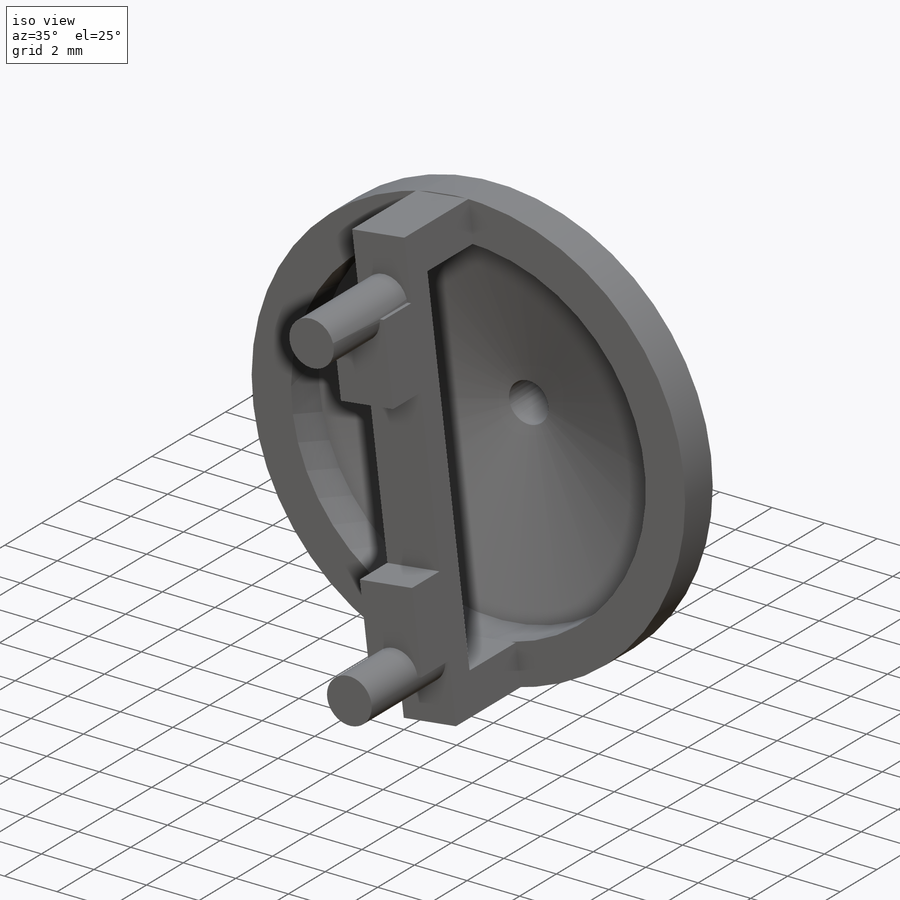
[diagram: iso view]
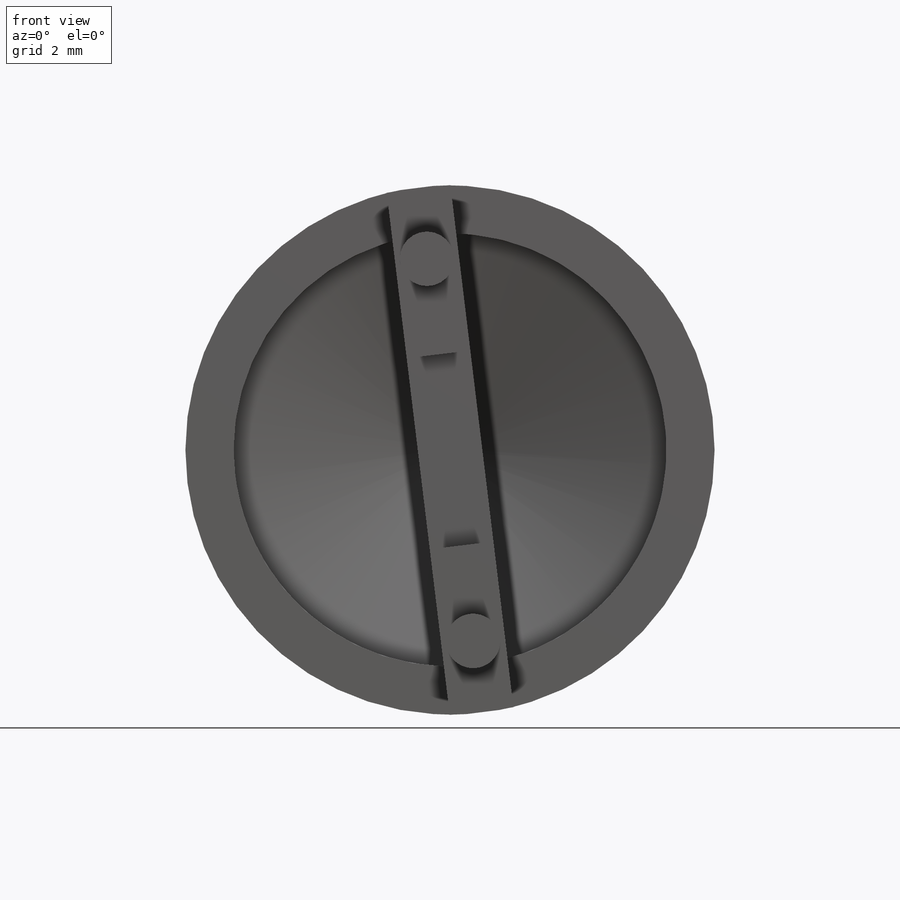
[diagram: front view]
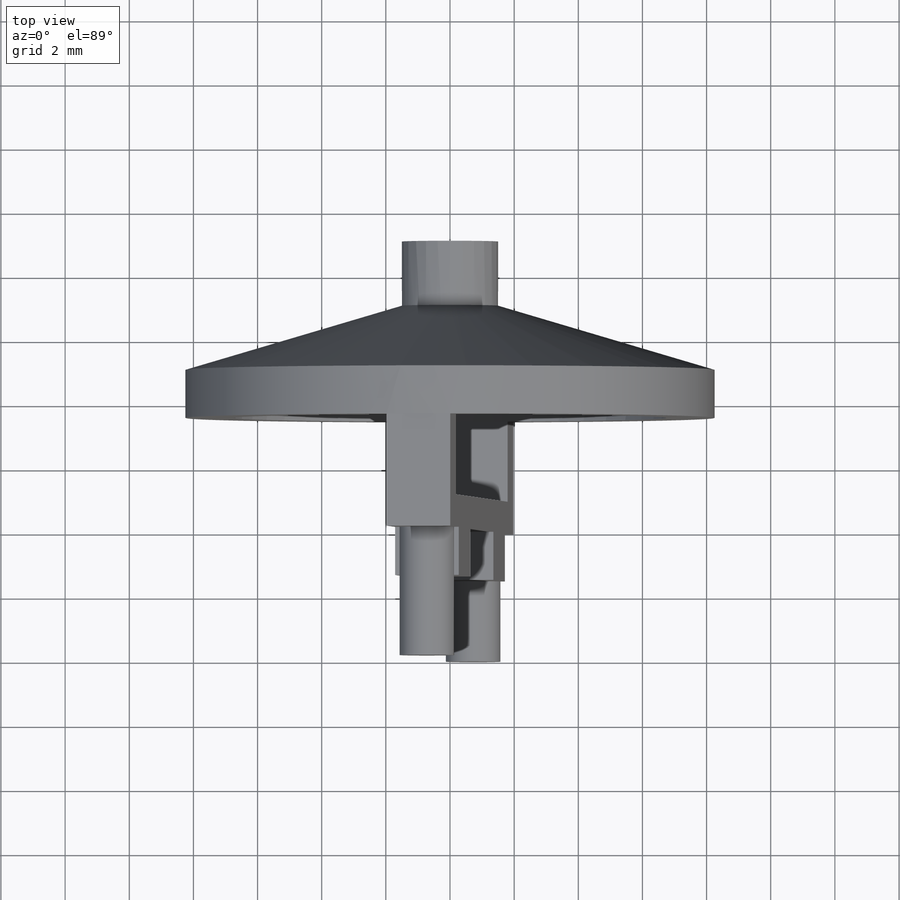
[diagram: top view]
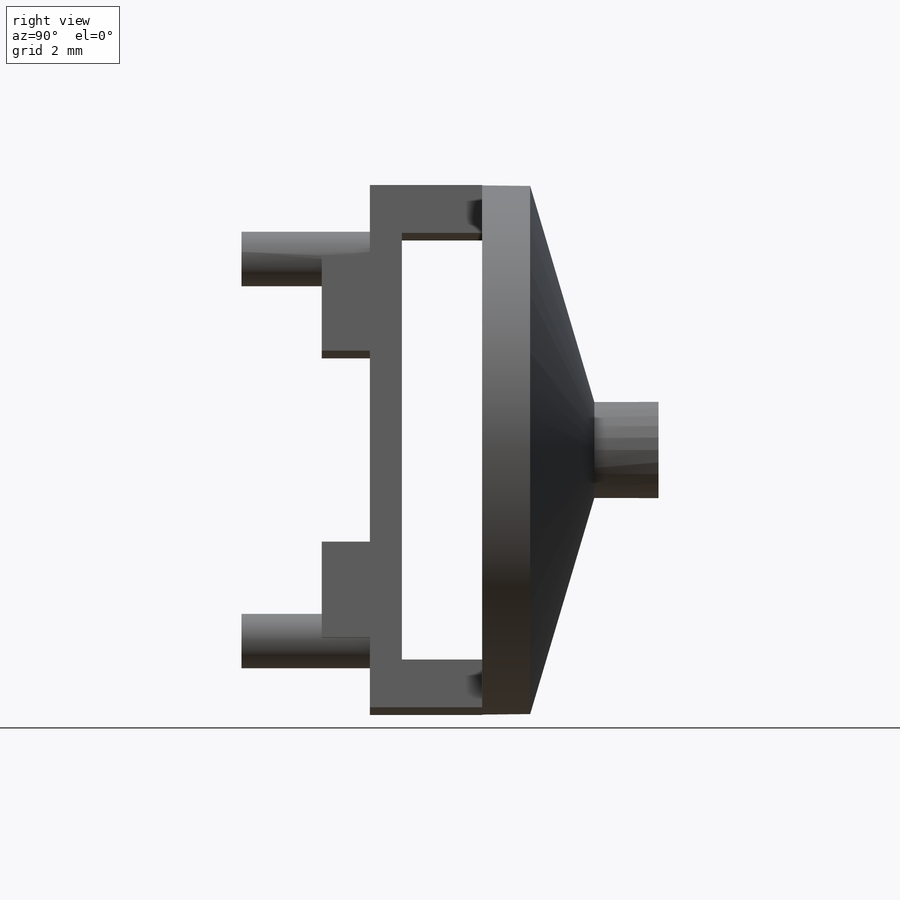
[diagram: right view]
SOLIDWORKS PART (.sldprt)
format: sldprt  version: not decoded by parser v0  size: 1,295,872 bytes
history: native  units: mm
features: sketch x57, extrude x17, cut_extrude x12, pattern_circular x6, plane x4, sweep x2, material x1, mirror x1 + 2 further entries (+11 scaffold rows collapsed)
feature tree (113):
  scaffold x11  (default folders/planes/origin — collapsed)
  material  "材料 <未指定>"
  "ｻｰﾌｪｽ ﾎﾞﾃﾞｨ"
  "ｿﾘｯﾄﾞ ﾎﾞﾃﾞｨ"
  plane  "正面"
  plane  "平面"
  plane  "右側面"
  sketch  "ｽｹｯﾁ1"  dims[c1.D1=0.2mm c1.D3=0.3mm c2.D1=2.5mm c2.D2=0.3mm]
  extrude  "ﾎﾞｽ - 押し出し1"  Depth=6mm
  sketch  "ｽｹｯﾁ2"  dims[D1=12.0mm]
  sketch  "ｽｹｯﾁ3"  dims[D1=0.3mm D2=1.0mm]
  sketch  "ｽｹｯﾁ4"  dims[D1=1.0mm D3=0.8mm D2=4.0mm D4=4.0mm]
  sketch  "3Dｽｹｯﾁ1"  dims[D1=~2.347723mm]
  sketch  "ｽｹｯﾁ6"  dims[D1=0.5mm D2=3.0mm D3=1.2mm]
  sketch  "ｽｹｯﾁ8"  dims[D1=0.5mm D2=0.8mm]
  sketch  "3Dｽｹｯﾁ3"
  sketch  "ｽｹｯﾁ9"  dims[D1=2.0mm D2=6.2mm]
  sketch  "3Dｽｹｯﾁ4"  dims[D1=3.5mm]
  sweep  "ｶｯﾄ - ｽｲｰﾌﾟ2"
  pattern_circular  "円形ﾊﾟﾀｰﾝ2"  Count=16 Angle=360deg
  sketch  "ｽｹｯﾁ11"  dims[D1=1.1mm D2=1.1mm]
  sketch  "3Dｽｹｯﾁ5"  dims[c1.D1=~2.474285mm c1.D2=3.8mm c2.D1=3.8mm]
  sweep  "ｶｯﾄ - ｽｲｰﾌﾟ7"
  sketch  "ｽｹｯﾁ12"
  cut_extrude  "ｶｯﾄ - 押し出し1"  Depth=3mm
  sketch  "ｽｹｯﾁ13"  dims[D1=4.0mm]
  cut_extrude  "ｶｯﾄ - 押し出し2"  Depth=1.5mm
  sketch  "ｽｹｯﾁ14"  dims[D1=10.1mm D2=8.7mm]
  extrude  "ﾎﾞｽ - 押し出し2"  Depth=7mm
  sketch  "ｽｹｯﾁ15"  dims[D1=6.8mm]
  cut_extrude  "ｶｯﾄ - 押し出し3"  Depth=7mm
  sketch  "ｽｹｯﾁ16"  dims[D1=10.0mm D2=3.0mm D3=1.4mm D4=0.7mm]
  cut_extrude  "ｶｯﾄ - 押し出し4"  Depth=7mm
  pattern_circular  "円形ﾊﾟﾀｰﾝ3"  Count=8 Angle=360deg
  sketch  "ｽｹｯﾁ17"  dims[c1.D1=13.5mm c1.D2=16.5mm c2.D1=~0.438365mm]
  extrude  "ﾎﾞｽ - 押し出し3"  Depth=1.5mm
  sketch  "ｽｹｯﾁ18"  dims[D1=2.0mm D2=1.0mm D3=1.0mm D4=~16.378339mm]
  extrude  "ﾎﾞｽ - 押し出し4"  Depth=1mm
  sketch  "ｽｹｯﾁ19"  dims[c1.D1=1.7mm c1.D2=1.7mm c1.D5=2.0mm c1.D3=6.0mm c1.D4=6.0mm c2.D5=1.0mm c2.D6=1.0mm]
  extrude  "ﾎﾞｽ - 押し出し5"  Depth=4mm
  sketch  "ｽｹｯﾁ20"  dims[D1=3.0mm D2=2.0]
  extrude  "ﾎﾞｽ - 押し出し8"  Depth=1.5mm
  sketch  "ｽｹｯﾁ21"
  extrude  "ﾎﾞｽ - 押し出し9"  Depth=12mm
  sketch  "ｽｹｯﾁ22"  dims[D1=2.0mm D2=1.0mm]
  extrude  "ﾎﾞｽ - 押し出し10"  Depth=1mm
  sketch  "ｽｹｯﾁ23"  dims[D1=5.5mm D2=8.5mm]
  extrude  "ﾎﾞｽ - 押し出し11"  Depth=0.5mm
  sketch  "ｽｹｯﾁ25"  dims[D1=0.5mm]
  sketch  "ｽｹｯﾁ26"  dims[c1.D1=0.5mm c1.D2=0.5mm c2.D1=0.5mm c2.D2=1.5mm]
  sketch  "3Dｽｹｯﾁ7"  dims[D1=10.0mm]
  sketch  "ｽｹｯﾁ28"  dims[D1=4.0mm]
  cut_extrude  "ｶｯﾄ - 押し出し6"  Depth=10mm
  sketch  "ｽｹｯﾁ29"  dims[c1.D1=2.5mm c1.D2=2.5mm c1.D3=2.5mm c1.D4=2.5mm c1.D5=1.5mm c2.D3=3.0mm c2.D4=1.5mm]
  extrude  "ﾎﾞｽ - 押し出し12"  Depth=1mm
  sketch  "ｽｹｯﾁ27"  dims[D1=0.5mm]
  sketch  "ｽｹｯﾁ34"  dims[D1=0.8mm]
  sketch  "ｽｹｯﾁ35"  dims[c1.D1=0.8mm c1.D2=0.8mm c1.D3=0.8mm c2.D1=~0.86114mm c2.D2=0.8mm c3.D1=0.8mm c3.D3=0.0mm c4.D1=0.7mm c4.D2=0.7mm]
  sketch  "3Dｽｹｯﾁ14"  dims[c1.D1=10.0mm c2.D1=10.0mm c3.D1=10.0mm c4.D1=8.0mm]
  sketch  "ｽｹｯﾁ36"  dims[D1=0.8mm]
  sketch  "ｽｹｯﾁ37"  dims[c1.D1=0.8mm c1.D2=0.8mm c1.D3=0.5mm c2.D1=0.0mm c2.D3=0.7mm c2.D2=0.7mm]
  sketch  "3Dｽｹｯﾁ13"  dims[c1.D1=5.0mm c2.D1=5.0mm c3.D1=10.0mm c4.D1=10.0mm c5.D1=10.0mm c6.D1=5.0mm c7.D1=10.0mm]
  sketch  "ｽｹｯﾁ39"  dims[D1=0.8mm]
  sketch  "ｽｹｯﾁ40"  dims[c1.D1=0.8mm c1.D2=0.5mm c1.D3=0.5mm c1.D4=0.5mm c2.D2=1.5mm c2.D3=0.75mm c2.D4=1.3mm c3.D2=0.5mm c3.D3=0.75mm c3.D1=0.8mm c4.D2=~1.327198mm c4.D1=0.0mm c4.D3=~0.025912mm c4.D4=~0.025912mm c5.D2=0.0mm c5.D3=0.1mm c6.D2=0.7mm]
  sketch  "3Dｽｹｯﾁ15"  dims[c1.D1=10.0mm c2.D1=10.0mm c3.D1=10.0mm c4.D1=8.0mm]
  sketch  "ｽｹｯﾁ41"  dims[D1=0.8mm]
  sketch  "ｽｹｯﾁ42"  dims[c1.D1=0.8mm c1.D2=0.5mm c1.D3=2.5mm c2.D1=0.8mm c2.D3=0.0mm c2.D2=0.7mm]
  sketch  "3Dｽｹｯﾁ16"  dims[c1.D1=10.0mm c2.D1=10.0mm c2.D2=10.0mm c3.D1=8.0mm]
  sketch  "ｽｹｯﾁ45"
  plane  "平面6"
  mirror  "ﾐﾗｰ2"
  sketch  "ｽｹｯﾁ46"  dims[D1=1.5mm]
  extrude  "ﾎﾞｽ - 押し出し13"  Depth=11mm
  sketch  "ｽｹｯﾁ47"  dims[c1.D1=~1.201191mm c2.D1=270.0deg c3.D1=0.3mm c3.D2=1.5mm c3.D3=6.7mm c3.D4=10.3mm]
  extrude  "ﾎﾞｽ - 押し出し14"  Depth=3.5mm
  pattern_circular  "円形ﾊﾟﾀｰﾝ4"  Count=2 Angle=360deg
  sketch  "ｽｹｯﾁ48"  dims[D1=4.5mm]
  cut_extrude  "ｶｯﾄ - 押し出し7"  [1 undecoded]
  sketch  "ｽｹｯﾁ49"  dims[D1=1.5mm]
  extrude  "ﾎﾞｽ - 押し出し15"  Depth=4mm
  sketch  "ｽｹｯﾁ50"  dims[D1=1.5mm]
  cut_extrude  "ｶｯﾄ - 押し出し8"  Depth=4mm
  sketch  "ｽｹｯﾁ51"  dims[D1=1.0mm D2=3.5mm]
  cut_extrude  "ｶｯﾄ - 押し出し9"  Depth=3mm
  pattern_circular  "円形ﾊﾟﾀｰﾝ5"  Count=16 Angle=360deg
  sketch  "ｽｹｯﾁ52"  dims[D1=2.0mm D2=5.5mm]
  cut_extrude  "ｶｯﾄ - 押し出し10"  Depth=6mm
  pattern_circular  "円形ﾊﾟﾀｰﾝ6"  Count=8 Angle=360deg
  sketch  "ｽｹｯﾁ53"  dims[D1=8.0mm]
  extrude  "ﾎﾞｽ - 押し出し16"  Depth=1mm
  sketch  "ｽｹｯﾁ54"
  cut_extrude  "ｶｯﾄ - 押し出し11"  Depth=13mm
  sketch  "ｽｹｯﾁ55"  dims[D1=3.0mm D2=1.5mm]
  extrude  "ﾎﾞｽ - 押し出し17"  Depth=2mm
  sketch  "ｽｹｯﾁ56"
  extrude  "ﾎﾞｽ - 押し出し18"  Depth=2mm
  sketch  "ｽｹｯﾁ57"  dims[D1=1.5mm]
  cut_extrude  "ｶｯﾄ - 押し出し12"  Depth=15mm
  sketch  "ｽｹｯﾁ58"
  cut_extrude  "ｶｯﾄ - 押し出し13"  Depth=15mm
  sketch  "ｽｹｯﾁ59"  dims[c1.D2=1.7mm c1.D1=3.0mm c2.D2=0.0mm]
  extrude  "ﾎﾞｽ - 押し出し19"  Depth=1.5mm
  pattern_circular  "円形ﾊﾟﾀｰﾝ8"  Count=2 Angle=360deg
decode coverage: 84 of 95 modeling features carry decoded parameters; 2 rows unclassified (native names shown)
note: ~ marks probable driven/reference dimensions
note: 1 parameter value undecoded
note: suppression state not decoded; provenance and decode notes live in map.json
